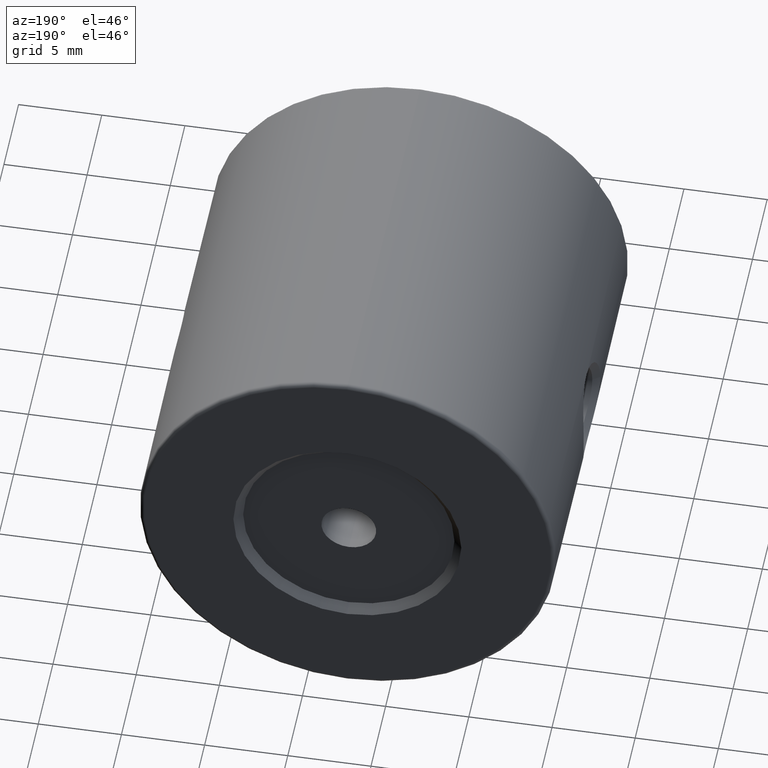
[diagram: clean part render]
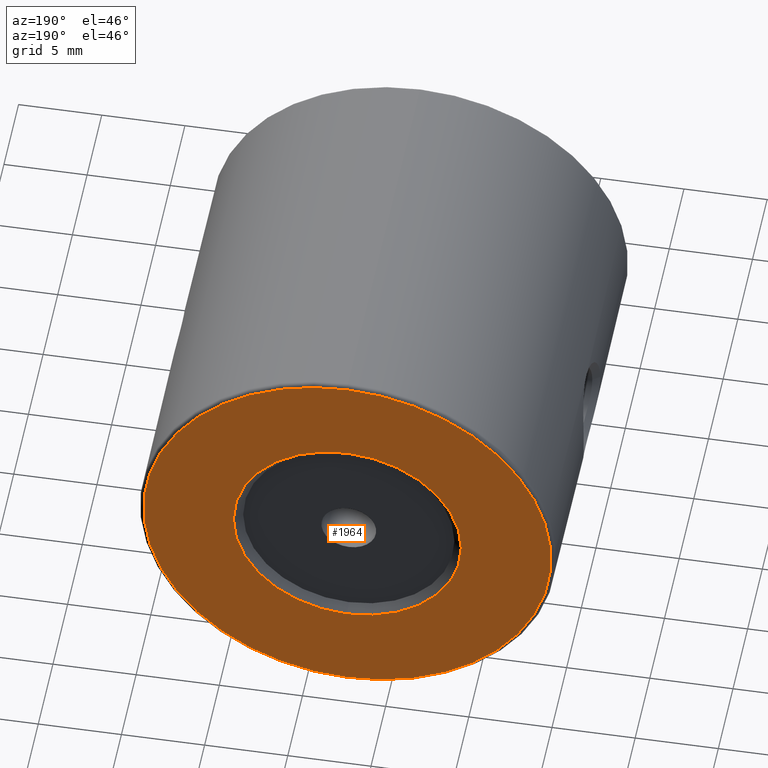
[diagram: same view with one face highlighted and labeled with its STEP entity id]
A machine part, auxiliary view. The second image highlights one B-rep face of the part: STEP entity #1964.
In plain terms, the highlighted planar face has unit normal (0, 1, 0).
Its self-contained STEP definition (entity closure, byte-faithful):
#73 = EDGE_CURVE ( 'NONE', #2461, #3227, #2717, .T. ) ;
#266 = DIRECTION ( 'NONE',  ( 0.0000000000000000000, 1.000000000000000000, 0.0000000000000000000 ) ) ;
#342 = CARTESIAN_POINT ( 'NONE',  ( -22.50520183104453409, 13.89825218476938851, 50.00000000000000000 ) ) ;
#397 = DIRECTION ( 'NONE',  ( 0.0000000000000000000, 0.0000000000000000000, 1.000000000000000000 ) ) ;
#416 = EDGE_LOOP ( 'NONE', ( #2192, #1799 ) ) ;
#559 = ORIENTED_EDGE ( 'NONE', *, *, #596, .T. ) ;
#587 = CARTESIAN_POINT ( 'NONE',  ( -22.50520183104453409, 13.89825218476938851, 37.75000000000000711 ) ) ;
#596 = EDGE_CURVE ( 'NONE', #2235, #3305, #1637, .T. ) ;
#644 = EDGE_CURVE ( 'NONE', #3227, #2461, #2661, .T. ) ;
#671 = DIRECTION ( 'NONE',  ( 0.0000000000000000000, 1.000000000000000000, 0.0000000000000000000 ) ) ;
#741 = DIRECTION ( 'NONE',  ( 0.0000000000000000000, 0.0000000000000000000, 1.000000000000000000 ) ) ;
#779 = AXIS2_PLACEMENT_3D ( 'NONE', #3178, #671, #741 ) ;
#825 = CARTESIAN_POINT ( 'NONE',  ( -22.50520183104453409, 13.89825218476938851, 50.00000000000000000 ) ) ;
#839 = CIRCLE ( 'NONE', #1355, 12.24999999999999645 ) ;
#856 = CARTESIAN_POINT ( 'NONE',  ( -22.50520183104453409, 13.89825218476938851, 43.14999999999999147 ) ) ;
#1104 = PLANE ( 'NONE',  #2134 ) ;
#1155 = DIRECTION ( 'NONE',  ( 0.0000000000000000000, 0.0000000000000000000, 1.000000000000000000 ) ) ;
#1171 = EDGE_CURVE ( 'NONE', #3305, #2235, #839, .T. ) ;
#1208 = DIRECTION ( 'NONE',  ( 0.0000000000000000000, 0.0000000000000000000, 1.000000000000000000 ) ) ;
#1355 = AXIS2_PLACEMENT_3D ( 'NONE', #2171, #2527, #1155 ) ;
#1397 = ORIENTED_EDGE ( 'NONE', *, *, #1171, .T. ) ;
#1411 = CARTESIAN_POINT ( 'NONE',  ( -22.50520183104453409, 13.89825218476938851, 62.25000000000000000 ) ) ;
#1470 = AXIS2_PLACEMENT_3D ( 'NONE', #825, #2261, #397 ) ;
#1479 = DIRECTION ( 'NONE',  ( -0.0000000000000000000, -1.000000000000000000, -0.0000000000000000000 ) ) ;
#1637 = CIRCLE ( 'NONE', #779, 12.24999999999999645 ) ;
#1674 = DIRECTION ( 'NONE',  ( 0.0000000000000000000, -0.0000000000000000000, 1.000000000000000000 ) ) ;
#1799 = ORIENTED_EDGE ( 'NONE', *, *, #644, .T. ) ;
#1964 = ADVANCED_FACE ( 'NONE', ( #3271, #3255 ), #1104, .T. ) ;
#2134 = AXIS2_PLACEMENT_3D ( 'NONE', #342, #266, #1674 ) ;
#2171 = CARTESIAN_POINT ( 'NONE',  ( -22.50520183104453409, 13.89825218476938851, 50.00000000000000000 ) ) ;
#2192 = ORIENTED_EDGE ( 'NONE', *, *, #73, .T. ) ;
#2235 = VERTEX_POINT ( 'NONE', #1411 ) ;
#2261 = DIRECTION ( 'NONE',  ( -0.0000000000000000000, -1.000000000000000000, -0.0000000000000000000 ) ) ;
#2461 = VERTEX_POINT ( 'NONE', #3393 ) ;
#2480 = EDGE_LOOP ( 'NONE', ( #559, #1397 ) ) ;
#2527 = DIRECTION ( 'NONE',  ( 0.0000000000000000000, 1.000000000000000000, 0.0000000000000000000 ) ) ;
#2661 = CIRCLE ( 'NONE', #3389, 6.850000000000008527 ) ;
#2717 = CIRCLE ( 'NONE', #1470, 6.850000000000008527 ) ;
#2827 = CARTESIAN_POINT ( 'NONE',  ( -22.50520183104453409, 13.89825218476938851, 50.00000000000000000 ) ) ;
#3178 = CARTESIAN_POINT ( 'NONE',  ( -22.50520183104453409, 13.89825218476938851, 50.00000000000000000 ) ) ;
#3227 = VERTEX_POINT ( 'NONE', #856 ) ;
#3255 = FACE_BOUND ( 'NONE', #416, .T. ) ;
#3271 = FACE_OUTER_BOUND ( 'NONE', #2480, .T. ) ;
#3305 = VERTEX_POINT ( 'NONE', #587 ) ;
#3389 = AXIS2_PLACEMENT_3D ( 'NONE', #2827, #1479, #1208 ) ;
#3393 = CARTESIAN_POINT ( 'NONE',  ( -22.50520183104453409, 13.89825218476938851, 56.85000000000000853 ) ) ;